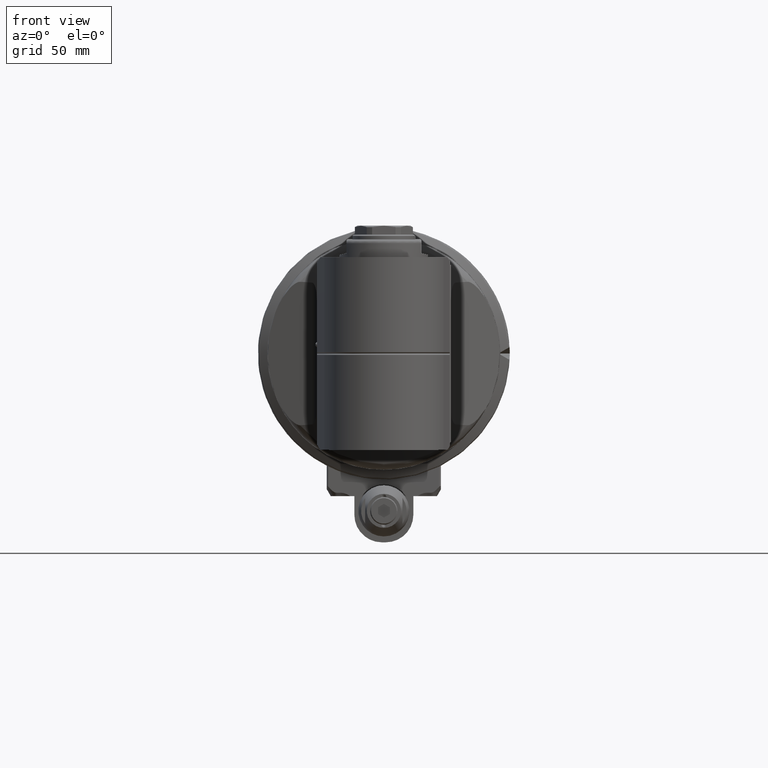
[diagram: clean part render]
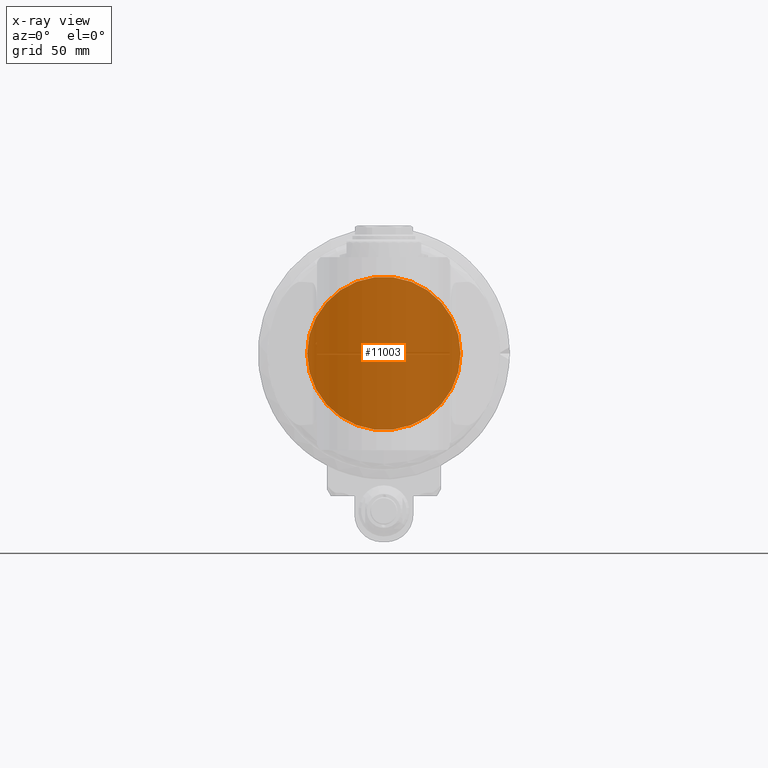
[diagram: x-ray — body ghosted, one internal face saturated and labeled with its STEP entity id]
A machine part, front view, then the same camera in x-ray: the body is ghosted and one INTERNAL B-rep face — a face not visible from any outside direction — is saturated and labeled: STEP entity #11003.
In plain terms, the highlighted planar face has unit normal (0, -1, -0).
Its self-contained STEP definition (entity closure, byte-faithful):
#2411=PLANE('',#12344);
#3047=FACE_OUTER_BOUND('',#3806,.T.);
#3806=EDGE_LOOP('',(#10170));
#4448=CIRCLE('',#12343,39.);
#5478=VERTEX_POINT('',#22835);
#7051=EDGE_CURVE('',#5478,#5478,#4448,.T.);
#10170=ORIENTED_EDGE('',*,*,#7051,.T.);
#11003=ADVANCED_FACE('',(#3047),#2411,.F.);
#12343=AXIS2_PLACEMENT_3D('',#22837,#15547,#15548);
#12344=AXIS2_PLACEMENT_3D('',#22838,#15549,#15550);
#15547=DIRECTION('center_axis',(-1.,0.,0.));
#15548=DIRECTION('ref_axis',(0.,0.,-1.));
#15549=DIRECTION('center_axis',(1.,0.,0.));
#15550=DIRECTION('ref_axis',(0.,-1.,0.));
#22835=CARTESIAN_POINT('',(143.063097000004,-4.77612251667385E-15,38.9999999999933));
#22837=CARTESIAN_POINT('Origin',(143.063097,0.,0.));
#22838=CARTESIAN_POINT('Origin',(143.063097,37.,0.));